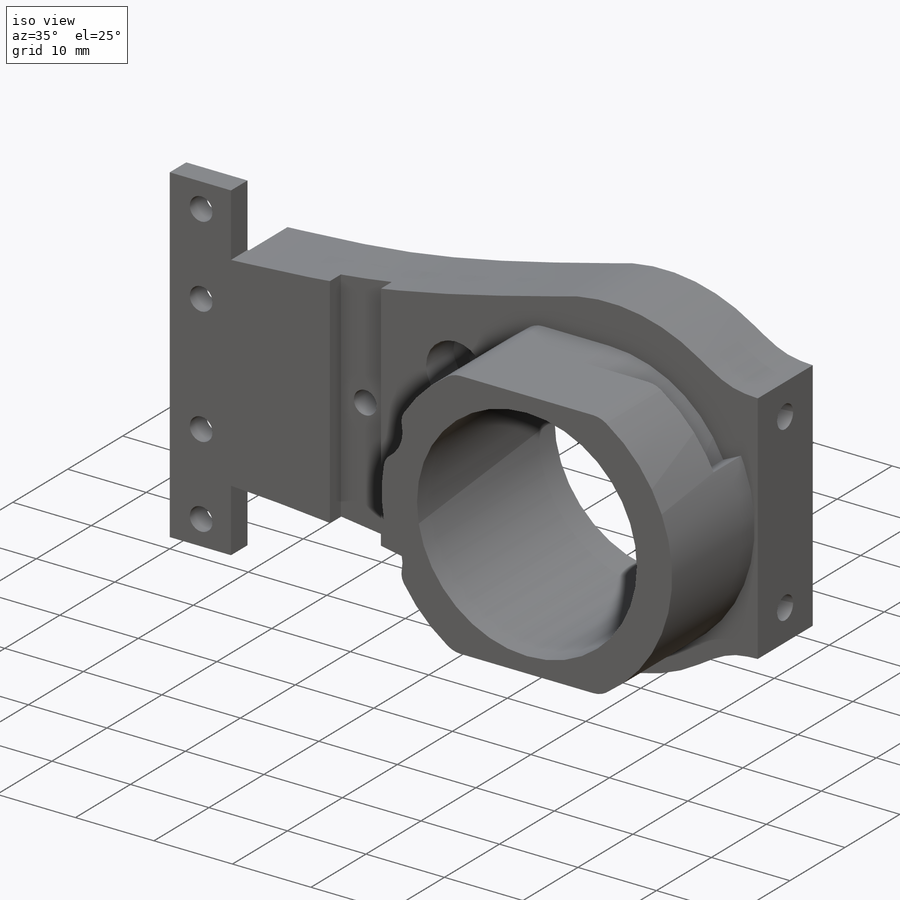
[diagram: iso view]
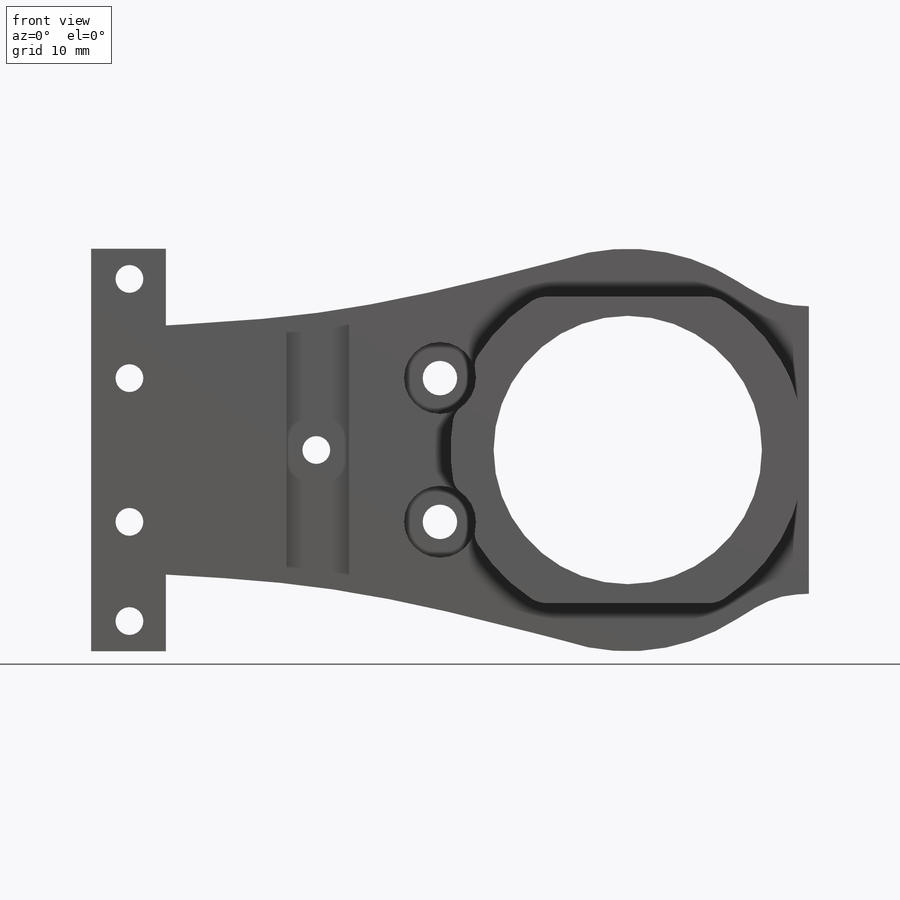
[diagram: front view]
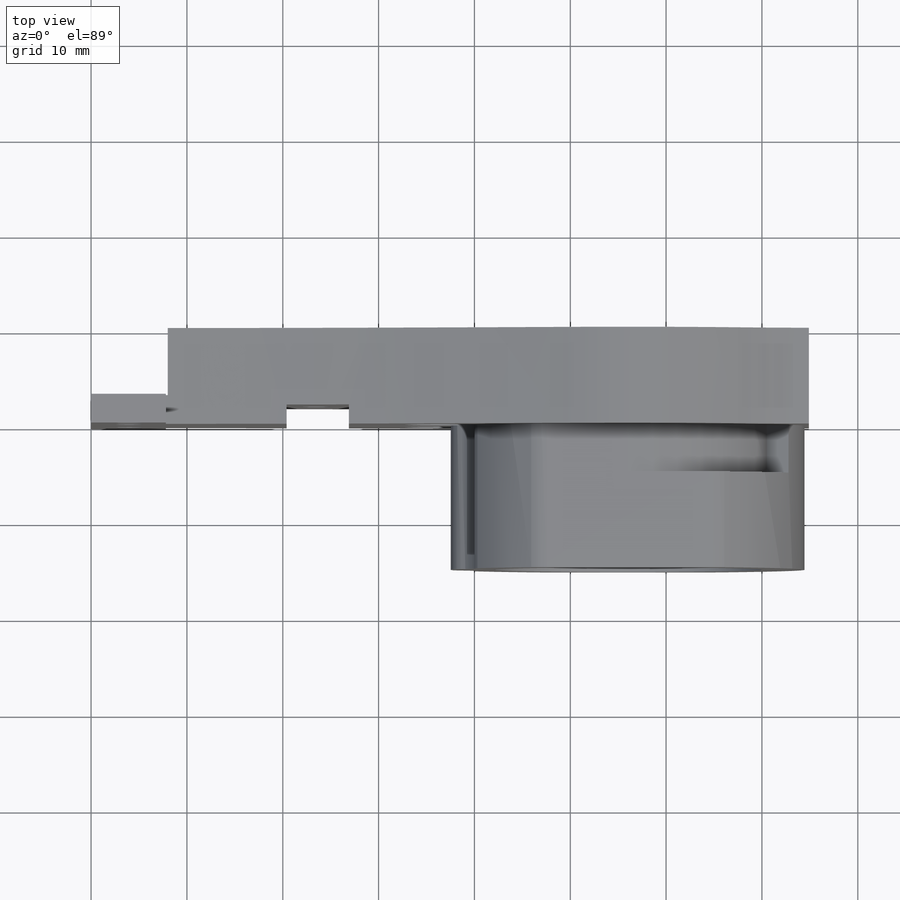
[diagram: top view]
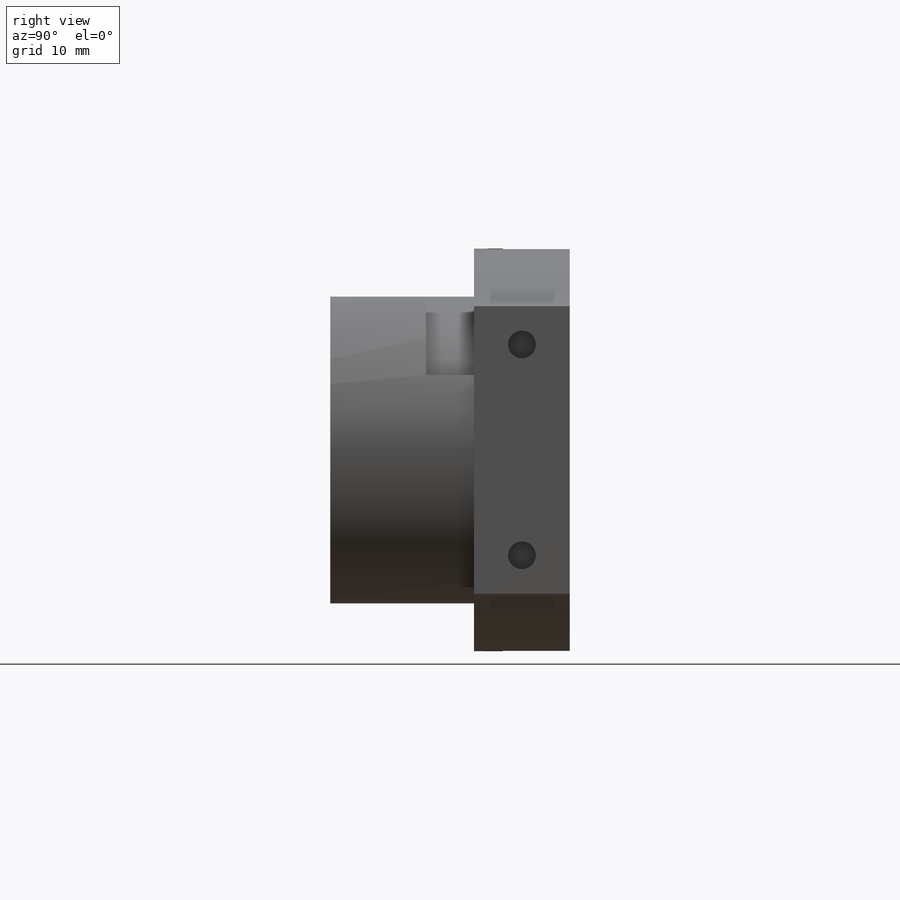
[diagram: right view]
SOLIDWORKS PART (.sldprt)
format: sldprt  version: not decoded by parser v0  size: 848,896 bytes
history: native  units: mm
features: sketch x13, cut_extrude x7, extrude x2, hole x2, fillet x2, material x1 (+14 scaffold rows collapsed)
feature tree (41):
  scaffold x14  (default folders/planes/origin — collapsed)
  material  "Material <not specified>"
  sketch  "Sketch1"  dims[D4=28.0mm D5=42.0mm D1=74.9mm D2=42.0mm D3=30.0mm D6=56.0mm D7=30.0mm D8=7.8mm D9=8.0mm]
  extrude  "Extrude1"  Depth=10mm
  sketch  "Sketch3"  dims[D1=37.0mm]
  extrude  "Extrude2"  Depth=15mm
  sketch  "Sketch4"  dims[D1=8.0mm]
  cut_extrude  "Extrude3"  Depth=7mm
  hole  "CBORE for M3 Pan Head Machine Screw1"  Diameter=3.6mm Depth=10mm
  sketch  "3DSketch1"  dims[D1=7.5mm D2=7.5mm D3=36.4mm]
  sketch  "Sketch5"  dims[hole-wizard template sketch: 41 standard entries collapsed; hole parameters kept: c12.Thru Hole Dia.=3.6mm c12.Thru Hole Depth=10.0mm c12.C'Bore Dia.=7.5mm c12.C'Bore Depth=5.0mm]
  sketch  "Sketch6"
  cut_extrude  "Extrude4"  Depth=20mm
  fillet  "Fillet1"  Radius=2mm
  sketch  "Sketch8"  dims[D1=16.0mm]
  cut_extrude  "Extrude5"  [1 undecoded]
  fillet  "Fillet2"  Radius=3mm
  sketch  "Sketch11"  dims[D1=35.0mm]
  cut_extrude  "Extrude8"  Depth=5mm
  hole  "Ø2.9 (2.9) Diameter Hole1"  Diameter=2.9mm Depth=10mm
  sketch  "3DSketch2"  dims[c1.D1=15.0mm c1.D2=7.5mm c1.D3=3.15mm c1.D4=3.15mm c1.D5=~42.00001mm c2.D5=~179.960279deg c3.D5=4.0mm]
  sketch  "Sketch13"  dims[hole-wizard template sketch: 50 standard entries collapsed; hole parameters above]
  sketch  "Sketch14"  dims[D1=6.5mm D2=20.4mm]
  cut_extrude  "Extrude9"  Depth=2mm
  sketch  "Sketch15"  dims[D1=2.9mm D2=3.1mm]
  cut_extrude  "Extrude10"  Depth=10mm
  sketch  "Sketch16"  dims[D1=2.9mm D2=4.0mm D3=4.0mm D4=5.0mm]
  cut_extrude  "Extrude11"  Depth=6mm
decode coverage: 24 of 26 modeling features carry decoded parameters
note: ~ marks probable driven/reference dimensions
note: 1 parameter value undecoded
note: suppression state not decoded; provenance and decode notes live in map.json
